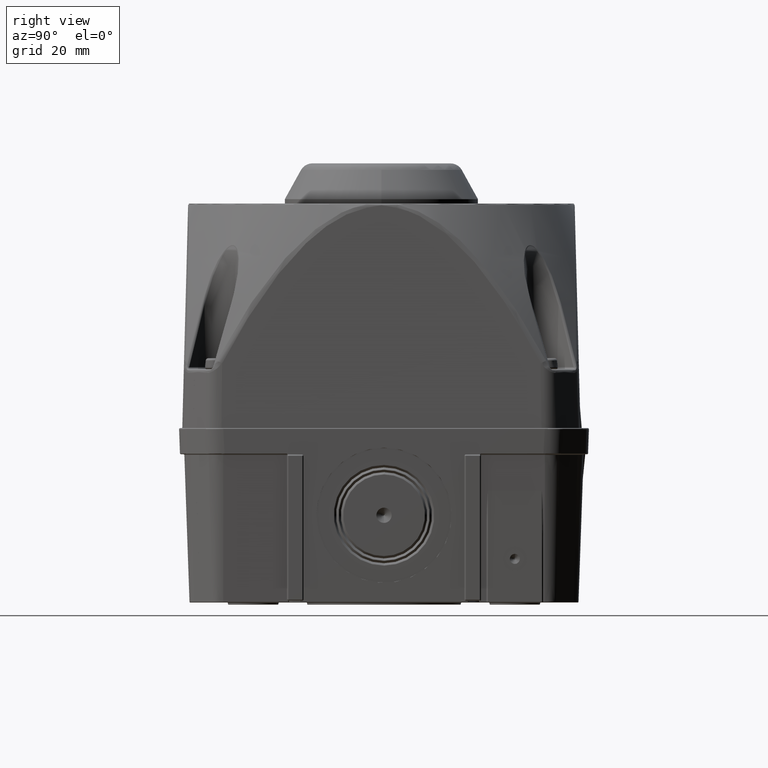
[diagram: clean part render]
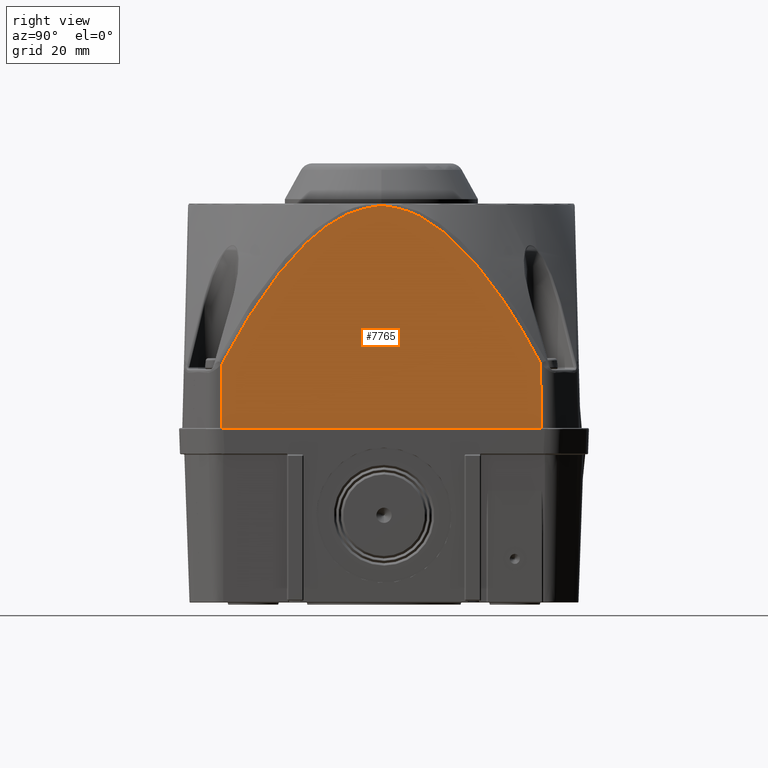
[diagram: same view with one face highlighted and labeled with its STEP entity id]
A machine part, right view. The second image highlights one B-rep face of the part: STEP entity #7765.
In plain terms, the highlighted planar face has unit normal (0.9997, 0, 0.0262).
Its self-contained STEP definition (entity closure, byte-faithful):
#1705=B_SPLINE_CURVE_WITH_KNOTS('',3,(#47180,#47181,#47182,#47183,#47184,
#47185,#47186,#47187,#47188,#47189,#47190,#47191,#47192,#47193,#47194,#47195,
#47196,#47197,#47198,#47199,#47200,#47201,#47202,#47203,#47204,#47205,#47206,
#47207,#47208,#47209,#47210,#47211,#47212,#47213,#47214,#47215,#47216,#47217,
#47218,#47219,#47220,#47221,#47222,#47223,#47224,#47225,#47226,#47227,#47228),
 .UNSPECIFIED.,.F.,.F.,(4,1,2,2,1,2,2,1,2,2,1,2,2,2,2,2,2,1,2,2,2,2,2,2,
2,2,4),(0.,0.062500000000001,0.0937500000000011,0.125000000000001,0.187500000000001,
0.218750000000002,0.250000000000002,0.312500000000002,0.343750000000002,
0.375000000000002,0.437500000000002,0.468750000000002,0.500000000000002,
0.531250000000002,0.562500000000002,0.593750000000002,0.625000000000002,
0.687500000000002,0.718750000000002,0.750000000000001,0.781250000000001,
0.812500000000001,0.843750000000001,0.875000000000001,0.90625,0.9375,1.),
 .UNSPECIFIED.);
#1706=B_SPLINE_CURVE_WITH_KNOTS('',3,(#47230,#47231,#47232,#47233,#47234,
#47235,#47236,#47237,#47238,#47239),.UNSPECIFIED.,.F.,.F.,(4,2,2,2,4),(0.,
0.25,0.5,0.75,1.),.UNSPECIFIED.);
#1707=B_SPLINE_CURVE_WITH_KNOTS('',3,(#47241,#47242,#47243,#47244,#47245,
#47246,#47247,#47248,#47249,#47250,#47251,#47252,#47253,#47254,#47255,#47256,
#47257,#47258,#47259,#47260),.UNSPECIFIED.,.F.,.F.,(4,1,1,1,1,1,2,2,1,1,
1,2,2,4),(0.,0.250000000000002,0.375000000000003,0.437500000000004,0.468750000000004,
0.484375000000004,0.492187500000004,0.500000000000004,0.625000000000004,
0.687500000000003,0.718750000000003,0.734375000000003,0.750000000000003,
1.),.UNSPECIFIED.);
#2414=PLANE('',#32161);
#4473=LINE('',#46885,#6164);
#4490=LINE('',#47178,#6181);
#4491=LINE('',#47262,#6182);
#6164=VECTOR('',#36237,1.);
#6181=VECTOR('',#36280,1.);
#6182=VECTOR('',#36281,1.);
#7765=ADVANCED_FACE('',(#9956),#2414,.T.);
#9956=FACE_OUTER_BOUND('',#11858,.T.);
#11858=EDGE_LOOP('',(#14736,#14737,#14738,#14739,#14740,#14741));
#14736=ORIENTED_EDGE('',*,*,#26240,.T.);
#14737=ORIENTED_EDGE('',*,*,#26241,.T.);
#14738=ORIENTED_EDGE('',*,*,#26242,.T.);
#14739=ORIENTED_EDGE('',*,*,#26243,.T.);
#14740=ORIENTED_EDGE('',*,*,#26244,.T.);
#14741=ORIENTED_EDGE('',*,*,#26205,.T.);
#23432=VERTEX_POINT('',#46884);
#23433=VERTEX_POINT('',#46886);
#23459=VERTEX_POINT('',#47179);
#23460=VERTEX_POINT('',#47229);
#23461=VERTEX_POINT('',#47240);
#23462=VERTEX_POINT('',#47261);
#26205=EDGE_CURVE('',#23433,#23432,#4473,.T.);
#26240=EDGE_CURVE('',#23432,#23459,#4490,.T.);
#26241=EDGE_CURVE('',#23459,#23460,#1705,.T.);
#26242=EDGE_CURVE('',#23460,#23461,#1706,.T.);
#26243=EDGE_CURVE('',#23461,#23462,#1707,.T.);
#26244=EDGE_CURVE('',#23462,#23433,#4491,.T.);
#32161=AXIS2_PLACEMENT_3D('',#47263,#36282,#36283);
#36237=DIRECTION('',(0.,1.,0.));
#36280=DIRECTION('',(-0.0261754096665653,-0.0108422096845631,0.999598566634598));
#36281=DIRECTION('',(0.0261754096665653,-0.0108422096845631,-0.999598566634598));
#36282=DIRECTION('',(0.999657324975557,0.,0.0261769483078732));
#36283=DIRECTION('',(-0.0261769483078732,0.,0.999657324975557));
#46884=CARTESIAN_POINT('',(45.7,36.6999954357194,-81.5));
#46885=CARTESIAN_POINT('',(45.7,0.,-81.5));
#46886=CARTESIAN_POINT('',(45.7,-36.6999954357194,-81.5));
#47178=CARTESIAN_POINT('',(45.6895845677126,36.695681222408,-81.1022506880309));
#47179=CARTESIAN_POINT('',(45.272004147619,36.5227137490238,-65.1554978120534));
#47180=CARTESIAN_POINT('',(45.272004147619,36.5227137490238,-65.1554978120534));
#47181=CARTESIAN_POINT('',(45.2465204035851,36.0095060936634,-64.1823128902773));
#47182=CARTESIAN_POINT('',(45.2094460299867,35.2496882746728,-62.7664996831526));
#47183=CARTESIAN_POINT('',(45.1740985200671,34.504860951757,-61.416632739337));
#47184=CARTESIAN_POINT('',(45.1509172609382,34.0116406244965,-60.5313761686397));
#47185=CARTESIAN_POINT('',(45.1406478121987,33.7912110642621,-60.1392017434477));
#47186=CARTESIAN_POINT('',(45.1036392447094,32.9878292592584,-58.7259015702412));
#47187=CARTESIAN_POINT('',(45.0675778339497,32.1869100233561,-57.3487718532508));
#47188=CARTESIAN_POINT('',(45.0329371582844,31.389684641106,-56.0258978205846));
#47189=CARTESIAN_POINT('',(45.0101590934174,30.8590219093064,-55.1560386175457));
#47190=CARTESIAN_POINT('',(44.999777314668,30.6143906256199,-54.7595744823444));
#47191=CARTESIAN_POINT('',(44.9640091914095,29.7599901349325,-53.3936449631561));
#47192=CARTESIAN_POINT('',(44.9290859099088,28.9024231733461,-52.0599786490469));
#47193=CARTESIAN_POINT('',(44.8954298910447,28.0401065054115,-50.7747071425563));
#47194=CARTESIAN_POINT('',(44.8732741590546,27.4641732364888,-49.9286138732556));
#47195=CARTESIAN_POINT('',(44.8630073520989,27.1936219058958,-49.5365403337172));
#47196=CARTESIAN_POINT('',(44.8286078396322,26.2727263845586,-48.2228759520489));
#47197=CARTESIAN_POINT('',(44.7950002392568,25.3439513978931,-46.9394534730384));
#47198=CARTESIAN_POINT('',(44.7625805070179,24.4033572132353,-45.7013938480145));
#47199=CARTESIAN_POINT('',(44.741231322889,23.7736679350207,-44.8861013988844));
#47200=CARTESIAN_POINT('',(44.7314227623325,23.4798947349577,-44.5115275833107));
#47201=CARTESIAN_POINT('',(44.7091334272789,22.8001831133261,-43.6603322188558));
#47202=CARTESIAN_POINT('',(44.6982933368982,22.4633360762799,-43.2463658685792));
#47203=CARTESIAN_POINT('',(44.6772223104294,21.7956595497268,-42.4416958319276));
#47204=CARTESIAN_POINT('',(44.6677587690334,21.4901734795646,-42.0802977665186));
#47205=CARTESIAN_POINT('',(44.6463712617651,20.7838452094003,-41.2635418157383));
#47206=CARTESIAN_POINT('',(44.6359614966069,20.4318776743226,-40.8660089227048));
#47207=CARTESIAN_POINT('',(44.6157099432426,19.7303358041763,-40.0926333013507));
#47208=CARTESIAN_POINT('',(44.6067117227505,19.4115091535001,-39.749005124342));
#47209=CARTESIAN_POINT('',(44.5755076204179,18.2741328951303,-38.5573685325151));
#47210=CARTESIAN_POINT('',(44.545976244572,17.13204805913,-37.4296107880385));
#47211=CARTESIAN_POINT('',(44.5189539584561,15.9829003566838,-36.3976713145873));
#47212=CARTESIAN_POINT('',(44.501496676541,15.2152323625096,-35.7310046147365));
#47213=CARTESIAN_POINT('',(44.4938256611237,14.867348937724,-35.4380603547041));
#47214=CARTESIAN_POINT('',(44.4759258546149,14.0230712213162,-34.7544943224178));
#47215=CARTESIAN_POINT('',(44.467384851351,13.6030185319237,-34.4283265669221));
#47216=CARTESIAN_POINT('',(44.4511206448046,12.7670854907614,-33.8072215772256));
#47217=CARTESIAN_POINT('',(44.4439335455069,12.3815343038546,-33.53275732823));
#47218=CARTESIAN_POINT('',(44.4282327309531,11.4932876082121,-32.9331674107129));
#47219=CARTESIAN_POINT('',(44.4208022871895,11.0486752004648,-32.6494102114884));
#47220=CARTESIAN_POINT('',(44.406781326689,10.1584722651177,-32.1139713321072));
#47221=CARTESIAN_POINT('',(44.4005901000545,9.74174708520949,-31.8775379257798));
#47222=CARTESIAN_POINT('',(44.387450413402,8.7918572147747,-31.3757535368765));
#47223=CARTESIAN_POINT('',(44.3813703998021,8.31589829127996,-31.1435671849909));
#47224=CARTESIAN_POINT('',(44.370190032055,7.36195246773572,-30.7166061663517));
#47225=CARTESIAN_POINT('',(44.3653560160703,6.91163621962106,-30.5320025436804));
#47226=CARTESIAN_POINT('',(44.3507254283196,5.39162159883611,-29.9732829388706));
#47227=CARTESIAN_POINT('',(44.3432976752427,4.38675927579714,-29.6896284928237));
#47228=CARTESIAN_POINT('',(44.3381958942559,3.39037771024252,-29.4947993372699));
#47229=CARTESIAN_POINT('',(44.3381958942559,3.39037771024253,-29.4947993372698));
#47230=CARTESIAN_POINT('',(44.3381958942559,3.39037771024253,-29.4947993372698));
#47231=CARTESIAN_POINT('',(44.3353271803412,2.82993711388789,-29.3852475727015));
#47232=CARTESIAN_POINT('',(44.3323847466153,2.26990881192433,-29.2728805621275));
#47233=CARTESIAN_POINT('',(44.3268884984149,1.14777373813692,-29.0629873114382));
#47234=CARTESIAN_POINT('',(44.3239453861343,0.587712380412215,-28.9505943879037));
#47235=CARTESIAN_POINT('',(44.3238553403042,-0.562319811025401,-28.9471556763875));
#47236=CARTESIAN_POINT('',(44.3268181029542,-1.13267967242839,-29.0602990172527));
#47237=CARTESIAN_POINT('',(44.3323453510074,-2.26257336937044,-29.2713761045564));
#47238=CARTESIAN_POINT('',(44.3353082179945,-2.82623257269524,-29.384523429898));
#47239=CARTESIAN_POINT('',(44.3381958942559,-3.39037771024217,-29.4947993372696));
#47240=CARTESIAN_POINT('',(44.3381958942559,-3.39037771024214,-29.4947993372698));
#47241=CARTESIAN_POINT('',(44.3381958942559,-3.39037771024214,-29.4947993372698));
#47242=CARTESIAN_POINT('',(44.3545833896694,-6.59057995013998,-30.1206125388486));
#47243=CARTESIAN_POINT('',(44.4146712949002,-11.4605676704491,-32.4152770619991));
#47244=CARTESIAN_POINT('',(44.5469105096963,-17.2641676416188,-37.4652889337104));
#47245=CARTESIAN_POINT('',(44.6285642817677,-20.1964545349059,-40.5835206849083));
#47246=CARTESIAN_POINT('',(44.6732747089718,-21.670219708475,-42.2909430143428));
#47247=CARTESIAN_POINT('',(44.6966008078659,-22.409007726991,-43.181730792519));
#47248=CARTESIAN_POINT('',(44.7068057542403,-22.7260394702974,-43.5714419717642));
#47249=CARTESIAN_POINT('',(44.7136552844561,-22.9374847006793,-43.8330149776162));
#47250=CARTESIAN_POINT('',(44.7180608565223,-23.0724478780645,-44.0012569871439));
#47251=CARTESIAN_POINT('',(44.760787077208,-24.3749565175405,-45.632905526716));
#47252=CARTESIAN_POINT('',(44.8243703006025,-26.1922416435186,-48.0610508652911));
#47253=CARTESIAN_POINT('',(44.9042624706718,-28.2746940732301,-51.1120097501335));
#47254=CARTESIAN_POINT('',(44.9456364914004,-29.3064919004367,-52.6920198566809));
#47255=CARTESIAN_POINT('',(44.9636742007899,-29.7466706004576,-53.3808521875139));
#47256=CARTESIAN_POINT('',(44.9757673373207,-30.0396740962978,-53.8426704396943));
#47257=CARTESIAN_POINT('',(44.9827312058956,-30.2070499459469,-54.1086098513173));
#47258=CARTESIAN_POINT('',(45.07166268306,-32.3312711747639,-57.5047659472334));
#47259=CARTESIAN_POINT('',(45.1663432425136,-34.3948410458127,-61.1204706381471));
#47260=CARTESIAN_POINT('',(45.272004147619,-36.5227137490238,-65.1554978120532));
#47261=CARTESIAN_POINT('',(45.272004147619,-36.5227137490238,-65.1554978120532));
#47262=CARTESIAN_POINT('',(45.6895845677126,-36.695681222408,-81.1022506880309));
#47263=CARTESIAN_POINT('',(45.7,0.,-81.5));